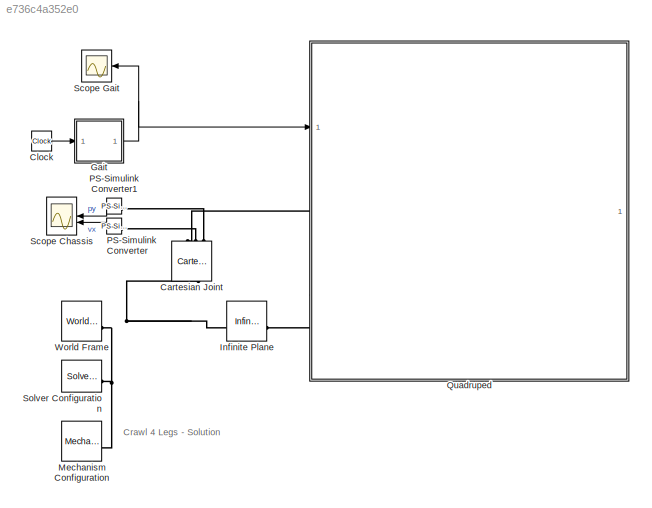
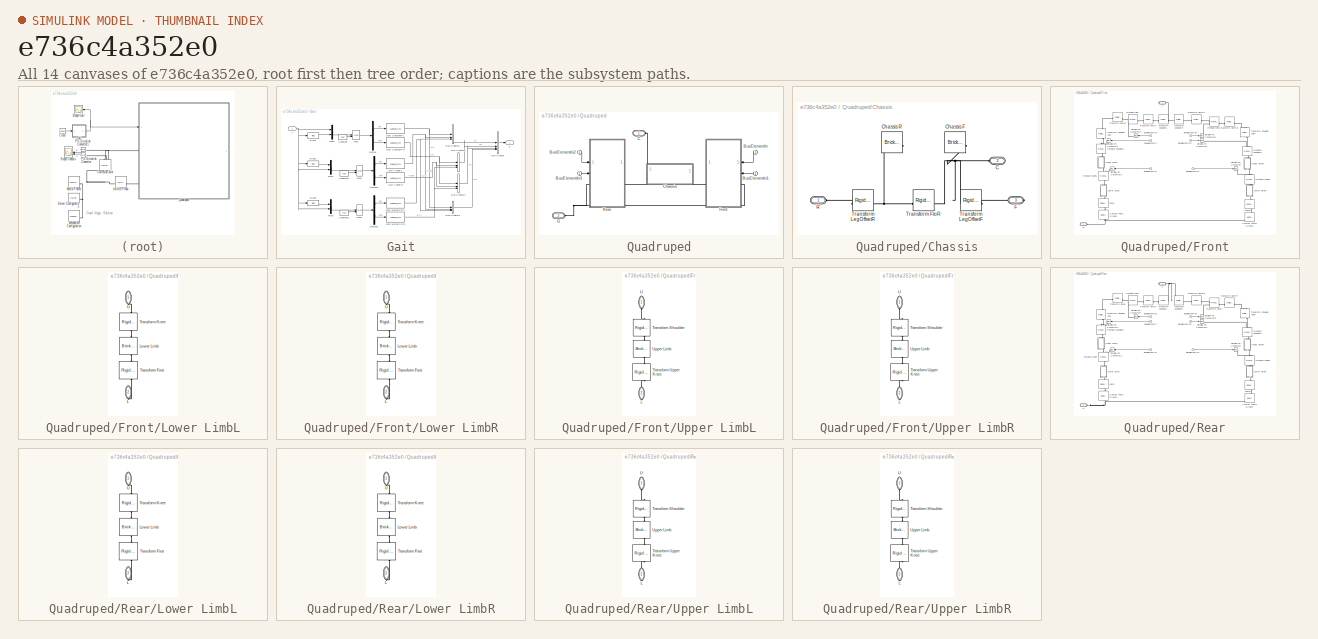
[diagram: thumbnail index - all 14 canvases of the model, root first then tree order]
MODEL slx_e736c4a352e0
KIND model
CONFIG AbsTol = 1e-3
CONFIG EnableMultiTasking = on
CONFIG FixedStep = auto
CONFIG MaxStep = 1e-2
CONFIG MinStep = auto
CONFIG RelTol = 1e-3
CONFIG SampleTimeConstraint = Unconstrained
CONFIG SolverName = ode23t
CONFIG StartTime = 0.0
CONFIG StopTime = 10.0
BLOCK [Reference] Cartesian Joint  REF=sm_lib/Joints/Cartesian
Joint
  NameLocation = right
  SourceBlock = sm_lib/Joints/Cartesian\nJoint
  SourceType = Cartesian\nJoint
BLOCK [Clock] Clock
BLOCK [SubSystem] Gait
BLOCK [Bias] Gait/Bias1
  Bias = tdur/2
  SaturateOnIntegerOverflow = off
BLOCK [Bias] Gait/Bias2
  Bias = tdur/2
  SaturateOnIntegerOverflow = off
BLOCK [Bias] Gait/Bias3
  Bias = tdur/2
  SaturateOnIntegerOverflow = off
BLOCK [BusCreator] Gait/Bus Creator
  DisplayOption = bar
  InheritFromInputs = on
  Inputs = 4
BLOCK [BusCreator] Gait/Bus Creator1
  DisplayOption = bar
  InheritFromInputs = on
  Inputs = 3
BLOCK [BusCreator] Gait/Bus Creator2
  DisplayOption = bar
  InheritFromInputs = on
  Inputs = 3
BLOCK [BusCreator] Gait/Bus Creator3
  DisplayOption = bar
  InheritFromInputs = on
  Inputs = 3
BLOCK [BusCreator] Gait/Bus Creator4
  DisplayOption = bar
  InheritFromInputs = on
  Inputs = 3
BLOCK [Constant] Gait/Constant
  Value = tdur
BLOCK [Constant] Gait/Constant1
  Value = tdur
BLOCK [Constant] Gait/Constant2
  Value = tdur
BLOCK [Demux] Gait/Demux
  Outputs = 2
BLOCK [Demux] Gait/Demux1
  Outputs = 2
BLOCK [Demux] Gait/Demux2
  Outputs = 2
BLOCK [Lookup_n-D] Gait/Gait ButterflyFL
  BreakpointsForDimension1 = [0 0.25 0.5 0.75 1]*tdur
  InputPortMap = u0
  InternalRulePriority = Speed
  InterpMethod = Akima spline
  NameLocation = top
  NumberOfTableDimensions = 1
  RndMeth = Simplest
  Table = [bMin (bMin+bMax)/2 bMax (bMin+bMax)/2 bMin]
BLOCK [Lookup_n-D] Gait/Gait ButterflyFR
  BreakpointsForDimension1 = [0 0.25 0.5 0.75 1]*tdur
  InputPortMap = u0
  InternalRulePriority = Speed
  InterpMethod = Akima spline
  NumberOfTableDimensions = 1
  RndMeth = Simplest
  Table = -[bMin (bMin+bMax)/2 bMax (bMin+bMax)/2 bMin]
BLOCK [Lookup_n-D] Gait/Gait KneeFL
  BreakpointsForDimension1 = [0     0.25 0.5   0.75 1      1]*tdur+[0 0 0 0 -tExtKnee 0]
  InputPortMap = u0
  InternalRulePriority = Speed
  InterpMethod = Akima spline
  NameLocation = top
  NumberOfTableDimensions = 1
  RndMeth = Simplest
  Table = [lMin lMin lMax lMax lMax lMin]
BLOCK [Lookup_n-D] Gait/Gait KneeFR
  BreakpointsForDimension1 = [0     0.25 0.5   0.75 1      1]*tdur+[0 0 0 0 -tExtKnee 0]
  InputPortMap = u0
  InternalRulePriority = Speed
  InterpMethod = Akima spline
  NumberOfTableDimensions = 1
  RndMeth = Simplest
  Table = [lMin lMin lMax lMax lMax lMin]
BLOCK [Lookup_n-D] Gait/Gait ShoulderFL
  BreakpointsForDimension1 = [0 0.25 0.5 0.75 1]*tdur
  InputPortMap = u0
  InternalRulePriority = Speed
  InterpMethod = Akima spline
  NameLocation = top
  NumberOfTableDimensions = 1
  RndMeth = Simplest
  Table = [uMin (uMin+uMax)/2 uMax (uMin+uMax)/2 uMin]
BLOCK [Lookup_n-D] Gait/Gait ShoulderFR
  BreakpointsForDimension1 = [0 0.25 0.5 0.75 1]*tdur
  InputPortMap = u0
  InternalRulePriority = Speed
  InterpMethod = Akima spline
  NumberOfTableDimensions = 1
  RndMeth = Simplest
  Table = [uMin (uMin+uMax)/2 uMax (uMin+uMax)/2 uMin]
BLOCK [Math] Gait/Mod
  Operator = mod
BLOCK [Math] Gait/Mod1
  Operator = mod
BLOCK [Math] Gait/Mod2
  Operator = mod
BLOCK [Mux] Gait/Mux1
  DisplayOption = bar
  Inputs = 2
BLOCK [Mux] Gait/Mux2
  DisplayOption = bar
  Inputs = 2
BLOCK [Mux] Gait/Mux3
  DisplayOption = bar
  Inputs = 2
BLOCK [Outport] Gait/q
BLOCK [Inport] Gait/t
BLOCK [Reference] Infinite Plane  REF=sm_lib/Curves and Surfaces/Infinite Plane
  SourceBlock = sm_lib/Curves and Surfaces/Infinite Plane
  SourceType = Infinite Plane
BLOCK [Reference] Mechanism Configuration  REF=sm_lib/Utilities/Mechanism
Configuration
  SourceBlock = sm_lib/Utilities/Mechanism\nConfiguration
  SourceType = Mechanism\nConfiguration
BLOCK [Reference] PS-Simulink Converter  REF=nesl_utility/PS-Simulink
Converter
  NameLocation = top
  SourceBlock = nesl_utility/PS-Simulink\nConverter
  SourceType = PS-Simulink\nConverter
BLOCK [Reference] PS-Simulink Converter1  REF=nesl_utility/PS-Simulink
Converter
  NameLocation = top
  SourceBlock = nesl_utility/PS-Simulink\nConverter
  SourceType = PS-Simulink\nConverter
BLOCK [SubSystem] Quadruped
BLOCK [Inport] Quadruped/BusElementIn
BLOCK [Inport] Quadruped/BusElementIn1
BLOCK [Inport] Quadruped/BusElementIn2
BLOCK [Inport] Quadruped/BusElementIn3
BLOCK [PMIOPort] Quadruped/C
  Side = Left
BLOCK [SubSystem] Quadruped/Chassis
  PortSchema = {"entries":[{"content":{"sides":[{"content":{"connectorIds":["LConn1"]},"type":"ConnectorPlacement.EquallySpacedRectSide","uuid":"7b3442d1-9cdb-4c81-bcba-527a755125cb"},{"content":{"connectorIds":["RConn1"],"side":"RIGHT"},"type":"ConnectorPlacement.EquallySpacedRectSide","uuid":"8b6aef7f-984d-41e4-bcd6-b81194131cbf"},{"content":{"connectorIds":["LConn2"],"side":"TOP"},"type":"ConnectorPlacement.E...<+253ch>
BLOCK [PMIOPort] Quadruped/Chassis/C
  Port = 2
  Side = Left
BLOCK [Reference] Quadruped/Chassis/Chassis F  REF=sm_lib/Body Elements/Brick Solid
  NameLocation = left
  SourceBlock = sm_lib/Body Elements/Brick Solid
  SourceType = Brick Solid
BLOCK [Reference] Quadruped/Chassis/Chassis R  REF=sm_lib/Body Elements/Brick Solid
  NameLocation = left
  SourceBlock = sm_lib/Body Elements/Brick Solid
  SourceType = Brick Solid
BLOCK [PMIOPort] Quadruped/Chassis/F
  Port = 3
  Side = Right
BLOCK [PMIOPort] Quadruped/Chassis/R
  Side = Left
BLOCK [Reference] Quadruped/Chassis/Transform FtoR  REF=sm_lib/Frames and
Transforms/Rigid
Transform
  SourceBlock = sm_lib/Frames and\nTransforms/Rigid\nTransform
  SourceType = Rigid\nTransform
BLOCK [Reference] Quadruped/Chassis/Transform LegOffsetF  REF=sm_lib/Frames and
Transforms/Rigid
Transform
  SourceBlock = sm_lib/Frames and\nTransforms/Rigid\nTransform
  SourceType = Rigid\nTransform
BLOCK [Reference] Quadruped/Chassis/Transform LegOffsetR  REF=sm_lib/Frames and
Transforms/Rigid
Transform
  SourceBlock = sm_lib/Frames and\nTransforms/Rigid\nTransform
  SourceType = Rigid\nTransform
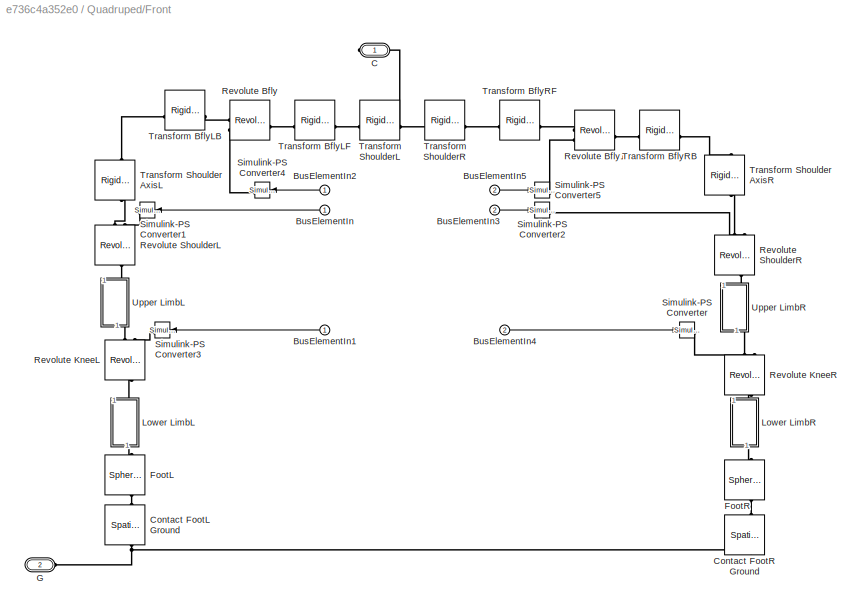
BLOCK [SubSystem] Quadruped/Front
BLOCK [Inport] Quadruped/Front/BusElementIn
BLOCK [Inport] Quadruped/Front/BusElementIn1
BLOCK [Inport] Quadruped/Front/BusElementIn2
BLOCK [Inport] Quadruped/Front/BusElementIn3
  Port = 2
BLOCK [Inport] Quadruped/Front/BusElementIn4
  Port = 2
BLOCK [Inport] Quadruped/Front/BusElementIn5
  Port = 2
BLOCK [PMIOPort] Quadruped/Front/C
  Side = Right
BLOCK [Reference] Quadruped/Front/Contact FootL Ground  REF=sm_lib/Forces and
Torques/Spatial
Contact Force
  NameLocation = left
  SourceBlock = sm_lib/Forces and\nTorques/Spatial\nContact Force
  SourceType = Spatial\nContact Force
BLOCK [Reference] Quadruped/Front/Contact FootR Ground  REF=sm_lib/Forces and
Torques/Spatial
Contact Force
  NameLocation = left
  SourceBlock = sm_lib/Forces and\nTorques/Spatial\nContact Force
  SourceType = Spatial\nContact Force
BLOCK [Reference] Quadruped/Front/FootL  REF=sm_lib/Body Elements/Spherical Solid
  NameLocation = left
  SourceBlock = sm_lib/Body Elements/Spherical Solid
  SourceType = Spherical Solid
BLOCK [Reference] Quadruped/Front/FootR  REF=sm_lib/Body Elements/Spherical Solid
  NameLocation = left
  SourceBlock = sm_lib/Body Elements/Spherical Solid
  SourceType = Spherical Solid
BLOCK [PMIOPort] Quadruped/Front/G
  Port = 2
  Side = Left
BLOCK [SubSystem] Quadruped/Front/Lower LimbL
  NameLocation = left
BLOCK [PMIOPort] Quadruped/Front/Lower LimbL/L
  NameLocation = left
  Port = 2
  Side = Right
BLOCK [Reference] Quadruped/Front/Lower LimbL/Lower Limb  REF=sm_lib/Body Elements/Brick Solid
  NameLocation = left
  SourceBlock = sm_lib/Body Elements/Brick Solid
  SourceType = Brick Solid
BLOCK [Reference] Quadruped/Front/Lower LimbL/Transform Foot  REF=sm_lib/Frames and
Transforms/Rigid
Transform
  NameLocation = left
  SourceBlock = sm_lib/Frames and\nTransforms/Rigid\nTransform
  SourceType = Rigid\nTransform
BLOCK [Reference] Quadruped/Front/Lower LimbL/Transform Knee  REF=sm_lib/Frames and
Transforms/Rigid
Transform
  NameLocation = left
  SourceBlock = sm_lib/Frames and\nTransforms/Rigid\nTransform
  SourceType = Rigid\nTransform
BLOCK [PMIOPort] Quadruped/Front/Lower LimbL/U
  NameLocation = right
  Side = Left
BLOCK [SubSystem] Quadruped/Front/Lower LimbR
  NameLocation = left
BLOCK [PMIOPort] Quadruped/Front/Lower LimbR/L
  NameLocation = left
  Port = 2
  Side = Right
BLOCK [Reference] Quadruped/Front/Lower LimbR/Lower Limb  REF=sm_lib/Body Elements/Brick Solid
  NameLocation = left
  SourceBlock = sm_lib/Body Elements/Brick Solid
  SourceType = Brick Solid
BLOCK [Reference] Quadruped/Front/Lower LimbR/Transform Foot  REF=sm_lib/Frames and
Transforms/Rigid
Transform
  NameLocation = left
  SourceBlock = sm_lib/Frames and\nTransforms/Rigid\nTransform
  SourceType = Rigid\nTransform
BLOCK [Reference] Quadruped/Front/Lower LimbR/Transform Knee  REF=sm_lib/Frames and
Transforms/Rigid
Transform
  NameLocation = left
  SourceBlock = sm_lib/Frames and\nTransforms/Rigid\nTransform
  SourceType = Rigid\nTransform
BLOCK [PMIOPort] Quadruped/Front/Lower LimbR/U
  NameLocation = right
  Side = Left
BLOCK [Reference] Quadruped/Front/Revolute Bfly  REF=sm_lib/Joints/Revolute Joint
  SourceBlock = sm_lib/Joints/Revolute Joint
  SourceType = Revolute Joint
BLOCK [Reference] Quadruped/Front/Revolute Bfly1  REF=sm_lib/Joints/Revolute Joint
  SourceBlock = sm_lib/Joints/Revolute Joint
  SourceType = Revolute Joint
BLOCK [Reference] Quadruped/Front/Revolute KneeL  REF=sm_lib/Joints/Revolute Joint
  NameLocation = left
  SourceBlock = sm_lib/Joints/Revolute Joint
  SourceType = Revolute Joint
BLOCK [Reference] Quadruped/Front/Revolute KneeR  REF=sm_lib/Joints/Revolute Joint
  NameLocation = left
  SourceBlock = sm_lib/Joints/Revolute Joint
  SourceType = Revolute Joint
BLOCK [Reference] Quadruped/Front/Revolute ShoulderL  REF=sm_lib/Joints/Revolute Joint
  NameLocation = left
  SourceBlock = sm_lib/Joints/Revolute Joint
  SourceType = Revolute Joint
BLOCK [Reference] Quadruped/Front/Revolute ShoulderR  REF=sm_lib/Joints/Revolute Joint
  NameLocation = left
  SourceBlock = sm_lib/Joints/Revolute Joint
  SourceType = Revolute Joint
BLOCK [Reference] Quadruped/Front/Simulink-PS Converter  REF=nesl_utility/Simulink-PS
Converter
  NameLocation = top
  SourceBlock = nesl_utility/Simulink-PS\nConverter
  SourceType = Simulink-PS\nConverter
BLOCK [Reference] Quadruped/Front/Simulink-PS Converter1  REF=nesl_utility/Simulink-PS
Converter
  SourceBlock = nesl_utility/Simulink-PS\nConverter
  SourceType = Simulink-PS\nConverter
BLOCK [Reference] Quadruped/Front/Simulink-PS Converter2  REF=nesl_utility/Simulink-PS
Converter
  SourceBlock = nesl_utility/Simulink-PS\nConverter
  SourceType = Simulink-PS\nConverter
BLOCK [Reference] Quadruped/Front/Simulink-PS Converter3  REF=nesl_utility/Simulink-PS
Converter
  SourceBlock = nesl_utility/Simulink-PS\nConverter
  SourceType = Simulink-PS\nConverter
BLOCK [Reference] Quadruped/Front/Simulink-PS Converter4  REF=nesl_utility/Simulink-PS
Converter
  SourceBlock = nesl_utility/Simulink-PS\nConverter
  SourceType = Simulink-PS\nConverter
BLOCK [Reference] Quadruped/Front/Simulink-PS Converter5  REF=nesl_utility/Simulink-PS
Converter
  SourceBlock = nesl_utility/Simulink-PS\nConverter
  SourceType = Simulink-PS\nConverter
BLOCK [Reference] Quadruped/Front/Transform BflyLB  REF=sm_lib/Frames and
Transforms/Rigid
Transform
  SourceBlock = sm_lib/Frames and\nTransforms/Rigid\nTransform
  SourceType = Rigid\nTransform
BLOCK [Reference] Quadruped/Front/Transform BflyLF  REF=sm_lib/Frames and
Transforms/Rigid
Transform
  SourceBlock = sm_lib/Frames and\nTransforms/Rigid\nTransform
  SourceType = Rigid\nTransform
BLOCK [Reference] Quadruped/Front/Transform BflyRB  REF=sm_lib/Frames and
Transforms/Rigid
Transform
  SourceBlock = sm_lib/Frames and\nTransforms/Rigid\nTransform
  SourceType = Rigid\nTransform
BLOCK [Reference] Quadruped/Front/Transform BflyRF  REF=sm_lib/Frames and
Transforms/Rigid
Transform
  SourceBlock = sm_lib/Frames and\nTransforms/Rigid\nTransform
  SourceType = Rigid\nTransform
BLOCK [Reference] Quadruped/Front/Transform Shoulder AxisL  REF=sm_lib/Frames and
Transforms/Rigid
Transform
  NameLocation = left
  SourceBlock = sm_lib/Frames and\nTransforms/Rigid\nTransform
  SourceType = Rigid\nTransform
BLOCK [Reference] Quadruped/Front/Transform Shoulder AxisR  REF=sm_lib/Frames and
Transforms/Rigid
Transform
  NameLocation = right
  SourceBlock = sm_lib/Frames and\nTransforms/Rigid\nTransform
  SourceType = Rigid\nTransform
BLOCK [Reference] Quadruped/Front/Transform ShoulderL  REF=sm_lib/Frames and
Transforms/Rigid
Transform
  SourceBlock = sm_lib/Frames and\nTransforms/Rigid\nTransform
  SourceType = Rigid\nTransform
BLOCK [Reference] Quadruped/Front/Transform ShoulderR  REF=sm_lib/Frames and
Transforms/Rigid
Transform
  SourceBlock = sm_lib/Frames and\nTransforms/Rigid\nTransform
  SourceType = Rigid\nTransform
BLOCK [SubSystem] Quadruped/Front/Upper LimbL
  NameLocation = left
BLOCK [PMIOPort] Quadruped/Front/Upper LimbL/L
  NameLocation = left
  Port = 2
  Side = Right
BLOCK [Reference] Quadruped/Front/Upper LimbL/Transform Shoulder  REF=sm_lib/Frames and
Transforms/Rigid
Transform
  NameLocation = left
  SourceBlock = sm_lib/Frames and\nTransforms/Rigid\nTransform
  SourceType = Rigid\nTransform
BLOCK [Reference] Quadruped/Front/Upper LimbL/Transform Upper Knee  REF=sm_lib/Frames and
Transforms/Rigid
Transform
  NameLocation = left
  SourceBlock = sm_lib/Frames and\nTransforms/Rigid\nTransform
  SourceType = Rigid\nTransform
BLOCK [PMIOPort] Quadruped/Front/Upper LimbL/U
  NameLocation = left
  Side = Left
BLOCK [Reference] Quadruped/Front/Upper LimbL/Upper Limb  REF=sm_lib/Body Elements/Brick Solid
  NameLocation = left
  SourceBlock = sm_lib/Body Elements/Brick Solid
  SourceType = Brick Solid
BLOCK [SubSystem] Quadruped/Front/Upper LimbR
  NameLocation = left
BLOCK [PMIOPort] Quadruped/Front/Upper LimbR/L
  NameLocation = left
  Port = 2
  Side = Right
BLOCK [Reference] Quadruped/Front/Upper LimbR/Transform Shoulder  REF=sm_lib/Frames and
Transforms/Rigid
Transform
  NameLocation = left
  SourceBlock = sm_lib/Frames and\nTransforms/Rigid\nTransform
  SourceType = Rigid\nTransform
BLOCK [Reference] Quadruped/Front/Upper LimbR/Transform Upper Knee  REF=sm_lib/Frames and
Transforms/Rigid
Transform
  NameLocation = left
  SourceBlock = sm_lib/Frames and\nTransforms/Rigid\nTransform
  SourceType = Rigid\nTransform
BLOCK [PMIOPort] Quadruped/Front/Upper LimbR/U
  NameLocation = left
  Side = Left
BLOCK [Reference] Quadruped/Front/Upper LimbR/Upper Limb  REF=sm_lib/Body Elements/Brick Solid
  NameLocation = left
  SourceBlock = sm_lib/Body Elements/Brick Solid
  SourceType = Brick Solid
BLOCK [PMIOPort] Quadruped/G
  Port = 2
  Side = Left
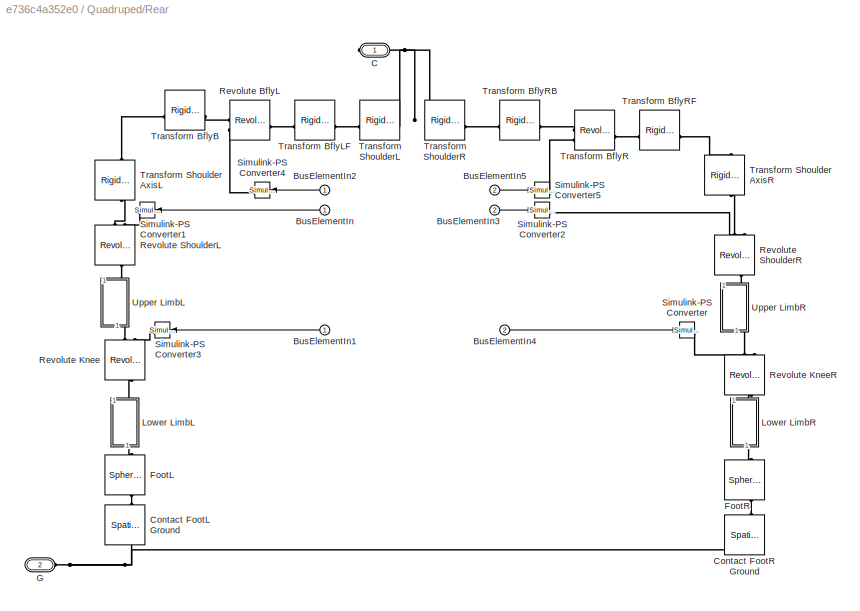
BLOCK [SubSystem] Quadruped/Rear
BLOCK [Inport] Quadruped/Rear/BusElementIn
BLOCK [Inport] Quadruped/Rear/BusElementIn1
BLOCK [Inport] Quadruped/Rear/BusElementIn2
BLOCK [Inport] Quadruped/Rear/BusElementIn3
  Port = 2
BLOCK [Inport] Quadruped/Rear/BusElementIn4
  Port = 2
BLOCK [Inport] Quadruped/Rear/BusElementIn5
  Port = 2
BLOCK [PMIOPort] Quadruped/Rear/C
  Side = Right
BLOCK [Reference] Quadruped/Rear/Contact FootL Ground  REF=sm_lib/Forces and
Torques/Spatial
Contact Force
  NameLocation = left
  SourceBlock = sm_lib/Forces and\nTorques/Spatial\nContact Force
  SourceType = Spatial\nContact Force
BLOCK [Reference] Quadruped/Rear/Contact FootR Ground  REF=sm_lib/Forces and
Torques/Spatial
Contact Force
  NameLocation = left
  SourceBlock = sm_lib/Forces and\nTorques/Spatial\nContact Force
  SourceType = Spatial\nContact Force
BLOCK [Reference] Quadruped/Rear/FootL  REF=sm_lib/Body Elements/Spherical Solid
  NameLocation = left
  SourceBlock = sm_lib/Body Elements/Spherical Solid
  SourceType = Spherical Solid
BLOCK [Reference] Quadruped/Rear/FootR  REF=sm_lib/Body Elements/Spherical Solid
  NameLocation = left
  SourceBlock = sm_lib/Body Elements/Spherical Solid
  SourceType = Spherical Solid
BLOCK [PMIOPort] Quadruped/Rear/G
  Port = 2
  Side = Left
BLOCK [SubSystem] Quadruped/Rear/Lower LimbL
  NameLocation = left
BLOCK [PMIOPort] Quadruped/Rear/Lower LimbL/L
  NameLocation = left
  Port = 2
  Side = Right
BLOCK [Reference] Quadruped/Rear/Lower LimbL/Lower Limb  REF=sm_lib/Body Elements/Brick Solid
  NameLocation = left
  SourceBlock = sm_lib/Body Elements/Brick Solid
  SourceType = Brick Solid
BLOCK [Reference] Quadruped/Rear/Lower LimbL/Transform Foot  REF=sm_lib/Frames and
Transforms/Rigid
Transform
  NameLocation = left
  SourceBlock = sm_lib/Frames and\nTransforms/Rigid\nTransform
  SourceType = Rigid\nTransform
BLOCK [Reference] Quadruped/Rear/Lower LimbL/Transform Knee  REF=sm_lib/Frames and
Transforms/Rigid
Transform
  NameLocation = left
  SourceBlock = sm_lib/Frames and\nTransforms/Rigid\nTransform
  SourceType = Rigid\nTransform
BLOCK [PMIOPort] Quadruped/Rear/Lower LimbL/U
  NameLocation = right
  Side = Left
BLOCK [SubSystem] Quadruped/Rear/Lower LimbR
  NameLocation = left
BLOCK [PMIOPort] Quadruped/Rear/Lower LimbR/L
  NameLocation = left
  Port = 2
  Side = Right
BLOCK [Reference] Quadruped/Rear/Lower LimbR/Lower Limb  REF=sm_lib/Body Elements/Brick Solid
  NameLocation = left
  SourceBlock = sm_lib/Body Elements/Brick Solid
  SourceType = Brick Solid
BLOCK [Reference] Quadruped/Rear/Lower LimbR/Transform Foot  REF=sm_lib/Frames and
Transforms/Rigid
Transform
  NameLocation = left
  SourceBlock = sm_lib/Frames and\nTransforms/Rigid\nTransform
  SourceType = Rigid\nTransform
BLOCK [Reference] Quadruped/Rear/Lower LimbR/Transform Knee  REF=sm_lib/Frames and
Transforms/Rigid
Transform
  NameLocation = left
  SourceBlock = sm_lib/Frames and\nTransforms/Rigid\nTransform
  SourceType = Rigid\nTransform
BLOCK [PMIOPort] Quadruped/Rear/Lower LimbR/U
  NameLocation = right
  Side = Left
BLOCK [Reference] Quadruped/Rear/Revolute BflyL  REF=sm_lib/Joints/Revolute Joint
  SourceBlock = sm_lib/Joints/Revolute Joint
  SourceType = Revolute Joint
BLOCK [Reference] Quadruped/Rear/Revolute Knee  REF=sm_lib/Joints/Revolute Joint
  NameLocation = left
  SourceBlock = sm_lib/Joints/Revolute Joint
  SourceType = Revolute Joint
BLOCK [Reference] Quadruped/Rear/Revolute KneeR  REF=sm_lib/Joints/Revolute Joint
  NameLocation = left
  SourceBlock = sm_lib/Joints/Revolute Joint
  SourceType = Revolute Joint
BLOCK [Reference] Quadruped/Rear/Revolute ShoulderL  REF=sm_lib/Joints/Revolute Joint
  NameLocation = left
  SourceBlock = sm_lib/Joints/Revolute Joint
  SourceType = Revolute Joint
BLOCK [Reference] Quadruped/Rear/Revolute ShoulderR  REF=sm_lib/Joints/Revolute Joint
  NameLocation = left
  SourceBlock = sm_lib/Joints/Revolute Joint
  SourceType = Revolute Joint
BLOCK [Reference] Quadruped/Rear/Simulink-PS Converter  REF=nesl_utility/Simulink-PS
Converter
  NameLocation = top
  SourceBlock = nesl_utility/Simulink-PS\nConverter
  SourceType = Simulink-PS\nConverter
BLOCK [Reference] Quadruped/Rear/Simulink-PS Converter1  REF=nesl_utility/Simulink-PS
Converter
  SourceBlock = nesl_utility/Simulink-PS\nConverter
  SourceType = Simulink-PS\nConverter
BLOCK [Reference] Quadruped/Rear/Simulink-PS Converter2  REF=nesl_utility/Simulink-PS
Converter
  SourceBlock = nesl_utility/Simulink-PS\nConverter
  SourceType = Simulink-PS\nConverter
BLOCK [Reference] Quadruped/Rear/Simulink-PS Converter3  REF=nesl_utility/Simulink-PS
Converter
  SourceBlock = nesl_utility/Simulink-PS\nConverter
  SourceType = Simulink-PS\nConverter
BLOCK [Reference] Quadruped/Rear/Simulink-PS Converter4  REF=nesl_utility/Simulink-PS
Converter
  SourceBlock = nesl_utility/Simulink-PS\nConverter
  SourceType = Simulink-PS\nConverter
BLOCK [Reference] Quadruped/Rear/Simulink-PS Converter5  REF=nesl_utility/Simulink-PS
Converter
  SourceBlock = nesl_utility/Simulink-PS\nConverter
  SourceType = Simulink-PS\nConverter
BLOCK [Reference] Quadruped/Rear/Transform BflyB  REF=sm_lib/Frames and
Transforms/Rigid
Transform
  SourceBlock = sm_lib/Frames and\nTransforms/Rigid\nTransform
  SourceType = Rigid\nTransform
BLOCK [Reference] Quadruped/Rear/Transform BflyLF  REF=sm_lib/Frames and
Transforms/Rigid
Transform
  SourceBlock = sm_lib/Frames and\nTransforms/Rigid\nTransform
  SourceType = Rigid\nTransform
BLOCK [Reference] Quadruped/Rear/Transform BflyR  REF=sm_lib/Joints/Revolute Joint
  SourceBlock = sm_lib/Joints/Revolute Joint
  SourceType = Revolute Joint
BLOCK [Reference] Quadruped/Rear/Transform BflyRB  REF=sm_lib/Frames and
Transforms/Rigid
Transform
  SourceBlock = sm_lib/Frames and\nTransforms/Rigid\nTransform
  SourceType = Rigid\nTransform
BLOCK [Reference] Quadruped/Rear/Transform BflyRF  REF=sm_lib/Frames and
Transforms/Rigid
Transform
  SourceBlock = sm_lib/Frames and\nTransforms/Rigid\nTransform
  SourceType = Rigid\nTransform
BLOCK [Reference] Quadruped/Rear/Transform Shoulder AxisL  REF=sm_lib/Frames and
Transforms/Rigid
Transform
  NameLocation = left
  SourceBlock = sm_lib/Frames and\nTransforms/Rigid\nTransform
  SourceType = Rigid\nTransform
BLOCK [Reference] Quadruped/Rear/Transform Shoulder AxisR  REF=sm_lib/Frames and
Transforms/Rigid
Transform
  NameLocation = right
  SourceBlock = sm_lib/Frames and\nTransforms/Rigid\nTransform
  SourceType = Rigid\nTransform
BLOCK [Reference] Quadruped/Rear/Transform ShoulderL  REF=sm_lib/Frames and
Transforms/Rigid
Transform
  SourceBlock = sm_lib/Frames and\nTransforms/Rigid\nTransform
  SourceType = Rigid\nTransform
BLOCK [Reference] Quadruped/Rear/Transform ShoulderR  REF=sm_lib/Frames and
Transforms/Rigid
Transform
  SourceBlock = sm_lib/Frames and\nTransforms/Rigid\nTransform
  SourceType = Rigid\nTransform
BLOCK [SubSystem] Quadruped/Rear/Upper LimbL
  NameLocation = left
BLOCK [PMIOPort] Quadruped/Rear/Upper LimbL/L
  NameLocation = left
  Port = 2
  Side = Right
BLOCK [Reference] Quadruped/Rear/Upper LimbL/Transform Shoulder  REF=sm_lib/Frames and
Transforms/Rigid
Transform
  NameLocation = left
  SourceBlock = sm_lib/Frames and\nTransforms/Rigid\nTransform
  SourceType = Rigid\nTransform
BLOCK [Reference] Quadruped/Rear/Upper LimbL/Transform Upper Knee  REF=sm_lib/Frames and
Transforms/Rigid
Transform
  NameLocation = left
  SourceBlock = sm_lib/Frames and\nTransforms/Rigid\nTransform
  SourceType = Rigid\nTransform
BLOCK [PMIOPort] Quadruped/Rear/Upper LimbL/U
  NameLocation = left
  Side = Left
BLOCK [Reference] Quadruped/Rear/Upper LimbL/Upper Limb  REF=sm_lib/Body Elements/Brick Solid
  NameLocation = left
  SourceBlock = sm_lib/Body Elements/Brick Solid
  SourceType = Brick Solid
BLOCK [SubSystem] Quadruped/Rear/Upper LimbR
  NameLocation = left
BLOCK [PMIOPort] Quadruped/Rear/Upper LimbR/L
  NameLocation = left
  Port = 2
  Side = Right
BLOCK [Reference] Quadruped/Rear/Upper LimbR/Transform Shoulder  REF=sm_lib/Frames and
Transforms/Rigid
Transform
  NameLocation = left
  SourceBlock = sm_lib/Frames and\nTransforms/Rigid\nTransform
  SourceType = Rigid\nTransform
BLOCK [Reference] Quadruped/Rear/Upper LimbR/Transform Upper Knee  REF=sm_lib/Frames and
Transforms/Rigid
Transform
  NameLocation = left
  SourceBlock = sm_lib/Frames and\nTransforms/Rigid\nTransform
  SourceType = Rigid\nTransform
BLOCK [PMIOPort] Quadruped/Rear/Upper LimbR/U
  NameLocation = left
  Side = Left
BLOCK [Reference] Quadruped/Rear/Upper LimbR/Upper Limb  REF=sm_lib/Body Elements/Brick Solid
  NameLocation = left
  SourceBlock = sm_lib/Body Elements/Brick Solid
  SourceType = Brick Solid
BLOCK [Scope] Scope Chassis
  Floating = off
  NumInputPorts = 2
  ScopeSpecificationString = Simulink.scopes.TimeScopeBlockCfg('CurrentConfiguration', extmgr.ConfigurationSet(extmgr.Configuration('Core','General UI',true),extmgr.Configuration('Core','Source UI',true),extmgr.Configuration('Sources','WiredSimulink',true,'DataLoggingVariableName','ScopeData2'),extmgr.Configuration('Visuals','Time Domain',true,'SerializedDisplays',{struct('MinYLimReal','-0.27815','MaxYLimReal','0.03627','YLab...<+2222ch>
BLOCK [Scope] Scope Gait
  Floating = off
  NumInputPorts = 1
  ScopeSpecificationString = Simulink.scopes.TimeScopeBlockCfg('CurrentConfiguration', extmgr.ConfigurationSet(extmgr.Configuration('Core','General UI',true),extmgr.Configuration('Core','Source UI',true),extmgr.Configuration('Sources','WiredSimulink',true,'DataLoggingVariableName','ScopeData1'),extmgr.Configuration('Visuals','Time Domain',true,'SerializedDisplays',{struct('MinYLimReal','-84.92464','MaxYLimReal','114.32173','Y...<+1551ch>
BLOCK [Reference] Solver Configuration  REF=nesl_utility/Solver
Configuration
  SourceBlock = nesl_utility/Solver\nConfiguration
  SourceType = Solver\nConfiguration
BLOCK [Reference] World Frame  REF=sm_lib/Frames and
Transforms/World Frame
  SourceBlock = sm_lib/Frames and\nTransforms/World Frame
  SourceType = World Frame
ANNOTATION (root): Crawl 4 Legs - Solution
LINE Clock:1 -> Gait:1
LINE Gait/Bias1:1 -> Gait/Mux1:2
LINE Gait/Bias2:1 -> Gait/Mux2:1
LINE Gait/Bias3:1 -> Gait/Mux3:1
LINE Gait/Bus Creator1:1 -> Gait/Bus Creator:1
LINE Gait/Bus Creator2:1 -> Gait/Bus Creator:2
LINE Gait/Bus Creator3:1 -> Gait/Bus Creator:4
LINE Gait/Bus Creator4:1 -> Gait/Bus Creator:3
LINE Gait/Bus Creator:1 -> Gait/q:1
LINE Gait/Constant1:1 -> Gait/Mod1:2
LINE Gait/Constant2:1 -> Gait/Mod2:2
LINE Gait/Constant:1 -> Gait/Mod:2
LINE Gait/Demux1:1 -> Gait/Gait ButterflyFL:1
LINE Gait/Demux1:2 -> Gait/Gait ButterflyFR:1
LINE Gait/Demux2:1 -> Gait/Gait KneeFL:1
LINE Gait/Demux2:2 -> Gait/Gait KneeFR:1
LINE Gait/Demux:1 -> Gait/Gait ShoulderFL:1
LINE Gait/Demux:2 -> Gait/Gait ShoulderFR:1
NET Gait/Gait ButterflyFL:1 -> Gait/Bus Creator1:3, Gait/Bus Creator3:3
NET Gait/Gait ButterflyFR:1 -> Gait/Bus Creator2:3, Gait/Bus Creator4:3
NET Gait/Gait KneeFL:1 -> Gait/Bus Creator1:2, Gait/Bus Creator3:2
NET Gait/Gait KneeFR:1 -> Gait/Bus Creator2:2, Gait/Bus Creator4:2
NET Gait/Gait ShoulderFL:1 -> Gait/Bus Creator1:1, Gait/Bus Creator3:1
NET Gait/Gait ShoulderFR:1 -> Gait/Bus Creator2:1, Gait/Bus Creator4:1
LINE Gait/Mod1:1 -> Gait/Demux2:1
LINE Gait/Mod2:1 -> Gait/Demux1:1
LINE Gait/Mod:1 -> Gait/Demux:1
LINE Gait/Mux1:1 -> Gait/Mod:1
LINE Gait/Mux2:1 -> Gait/Mod1:1
LINE Gait/Mux3:1 -> Gait/Mod2:1
NET Gait/t:1 -> Gait/Bias1:1, Gait/Bias2:1, Gait/Bias3:1, Gait/Mux1:1, Gait/Mux2:2, Gait/Mux3:2
NET Gait:1 -> Quadruped:1, Scope Gait:1
LINE PS-Simulink Converter1:1 -> Scope Chassis:1
LINE PS-Simulink Converter:1 -> Scope Chassis:2
LINE Quadruped/BusElementIn1:1 -> Quadruped/Front:2
LINE Quadruped/BusElementIn2:1 -> Quadruped/Rear:1
LINE Quadruped/BusElementIn3:1 -> Quadruped/Rear:2
LINE Quadruped/BusElementIn:1 -> Quadruped/Front:1
LINE Quadruped/Front/BusElementIn1:1 -> Quadruped/Front/Simulink-PS Converter3:1
LINE Quadruped/Front/BusElementIn2:1 -> Quadruped/Front/Simulink-PS Converter4:1
LINE Quadruped/Front/BusElementIn3:1 -> Quadruped/Front/Simulink-PS Converter2:1
LINE Quadruped/Front/BusElementIn4:1 -> Quadruped/Front/Simulink-PS Converter:1
LINE Quadruped/Front/BusElementIn5:1 -> Quadruped/Front/Simulink-PS Converter5:1
LINE Quadruped/Front/BusElementIn:1 -> Quadruped/Front/Simulink-PS Converter1:1
LINE Quadruped/Rear/BusElementIn1:1 -> Quadruped/Rear/Simulink-PS Converter3:1
LINE Quadruped/Rear/BusElementIn2:1 -> Quadruped/Rear/Simulink-PS Converter4:1
LINE Quadruped/Rear/BusElementIn3:1 -> Quadruped/Rear/Simulink-PS Converter2:1
LINE Quadruped/Rear/BusElementIn4:1 -> Quadruped/Rear/Simulink-PS Converter:1
LINE Quadruped/Rear/BusElementIn5:1 -> Quadruped/Rear/Simulink-PS Converter5:1
LINE Quadruped/Rear/BusElementIn:1 -> Quadruped/Rear/Simulink-PS Converter1:1
PNET net1: Cartesian Joint:LConn1 -- Infinite Plane:LConn1 -- Mechanism Configuration:RConn1 -- Solver Configuration:RConn1 -- World Frame:RConn1
PLINE Cartesian Joint:RConn1 -- Quadruped:LConn1
PLINE Cartesian Joint:RConn2 -- PS-Simulink Converter:LConn1
PLINE Cartesian Joint:RConn3 -- PS-Simulink Converter1:LConn1
PLINE Infinite Plane:RConn1 -- Quadruped:LConn2
PLINE Quadruped/C:RConn1 -- Quadruped/Chassis:LConn2
PNET net2: Quadruped/Chassis/C:RConn1 -- Quadruped/Chassis/Chassis F:RConn1 -- Quadruped/Chassis/Transform FtoR:LConn1 -- Quadruped/Chassis/Transform LegOffsetF:LConn1
PNET net3: Quadruped/Chassis/Chassis R:RConn1 -- Quadruped/Chassis/Transform FtoR:RConn1 -- Quadruped/Chassis/Transform LegOffsetR:RConn1
PLINE Quadruped/Chassis/F:RConn1 -- Quadruped/Chassis/Transform LegOffsetF:RConn1
PLINE Quadruped/Chassis/R:RConn1 -- Quadruped/Chassis/Transform LegOffsetR:LConn1
PLINE Quadruped/Chassis:LConn1 -- Quadruped/Rear:RConn1
PLINE Quadruped/Chassis:RConn1 -- Quadruped/Front:RConn1
PNET net4: Quadruped/Front/C:RConn1 -- Quadruped/Front/Transform ShoulderL:RConn1 -- Quadruped/Front/Transform ShoulderR:LConn1
PLINE Quadruped/Front/Contact FootL Ground:LConn1 -- Quadruped/Front/FootL:LConn1
PNET net5: Quadruped/Front/Contact FootL Ground:RConn1 -- Quadruped/Front/Contact FootR Ground:RConn1 -- Quadruped/Front/G:RConn1
PLINE Quadruped/Front/Contact FootR Ground:LConn1 -- Quadruped/Front/FootR:LConn1
PLINE Quadruped/Front/FootL:RConn1 -- Quadruped/Front/Lower LimbL:RConn1
PLINE Quadruped/Front/FootR:RConn1 -- Quadruped/Front/Lower LimbR:RConn1
PLINE Quadruped/Front/Lower LimbL/L:RConn1 -- Quadruped/Front/Lower LimbL/Transform Foot:RConn1
PLINE Quadruped/Front/Lower LimbL/Lower Limb:LConn1 -- Quadruped/Front/Lower LimbL/Transform Knee:LConn1
PLINE Quadruped/Front/Lower LimbL/Lower Limb:RConn1 -- Quadruped/Front/Lower LimbL/Transform Foot:LConn1
PLINE Quadruped/Front/Lower LimbL/Transform Knee:RConn1 -- Quadruped/Front/Lower LimbL/U:RConn1
PLINE Quadruped/Front/Lower LimbL:LConn1 -- Quadruped/Front/Revolute KneeL:RConn1
PLINE Quadruped/Front/Lower LimbR/L:RConn1 -- Quadruped/Front/Lower LimbR/Transform Foot:RConn1
PLINE Quadruped/Front/Lower LimbR/Lower Limb:LConn1 -- Quadruped/Front/Lower LimbR/Transform Knee:LConn1
PLINE Quadruped/Front/Lower LimbR/Lower Limb:RConn1 -- Quadruped/Front/Lower LimbR/Transform Foot:LConn1
PLINE Quadruped/Front/Lower LimbR/Transform Knee:RConn1 -- Quadruped/Front/Lower LimbR/U:RConn1
PLINE Quadruped/Front/Lower LimbR:LConn1 -- Quadruped/Front/Revolute KneeR:RConn1
PLINE Quadruped/Front/Revolute Bfly1:LConn1 -- Quadruped/Front/Transform BflyRF:RConn1
PLINE Quadruped/Front/Revolute Bfly1:LConn2 -- Quadruped/Front/Simulink-PS Converter5:RConn1
PLINE Quadruped/Front/Revolute Bfly1:RConn1 -- Quadruped/Front/Transform BflyRB:RConn1
PLINE Quadruped/Front/Revolute Bfly:LConn1 -- Quadruped/Front/Transform BflyLB:RConn1
PLINE Quadruped/Front/Revolute Bfly:LConn2 -- Quadruped/Front/Simulink-PS Converter4:RConn1
PLINE Quadruped/Front/Revolute Bfly:RConn1 -- Quadruped/Front/Transform BflyLF:RConn1
PLINE Quadruped/Front/Revolute KneeL:LConn1 -- Quadruped/Front/Upper LimbL:RConn1
PLINE Quadruped/Front/Revolute KneeL:LConn2 -- Quadruped/Front/Simulink-PS Converter3:RConn1
PLINE Quadruped/Front/Revolute KneeR:LConn1 -- Quadruped/Front/Upper LimbR:RConn1
PLINE Quadruped/Front/Revolute KneeR:LConn2 -- Quadruped/Front/Simulink-PS Converter:RConn1
PLINE Quadruped/Front/Revolute ShoulderL:LConn1 -- Quadruped/Front/Transform Shoulder AxisL:RConn1
PLINE Quadruped/Front/Revolute ShoulderL:LConn2 -- Quadruped/Front/Simulink-PS Converter1:RConn1
PLINE Quadruped/Front/Revolute ShoulderL:RConn1 -- Quadruped/Front/Upper LimbL:LConn1
PLINE Quadruped/Front/Revolute ShoulderR:LConn1 -- Quadruped/Front/Transform Shoulder AxisR:RConn1
PLINE Quadruped/Front/Revolute ShoulderR:LConn2 -- Quadruped/Front/Simulink-PS Converter2:RConn1
PLINE Quadruped/Front/Revolute ShoulderR:RConn1 -- Quadruped/Front/Upper LimbR:LConn1
PLINE Quadruped/Front/Transform BflyLB:LConn1 -- Quadruped/Front/Transform Shoulder AxisL:LConn1
PLINE Quadruped/Front/Transform BflyLF:LConn1 -- Quadruped/Front/Transform ShoulderL:LConn1
PLINE Quadruped/Front/Transform BflyRB:LConn1 -- Quadruped/Front/Transform Shoulder AxisR:LConn1
PLINE Quadruped/Front/Transform BflyRF:LConn1 -- Quadruped/Front/Transform ShoulderR:RConn1
PLINE Quadruped/Front/Upper LimbL/L:RConn1 -- Quadruped/Front/Upper LimbL/Transform Upper Knee:RConn1
PLINE Quadruped/Front/Upper LimbL/Transform Shoulder:LConn1 -- Quadruped/Front/Upper LimbL/Upper Limb:LConn1
PLINE Quadruped/Front/Upper LimbL/Transform Shoulder:RConn1 -- Quadruped/Front/Upper LimbL/U:RConn1
PLINE Quadruped/Front/Upper LimbL/Transform Upper Knee:LConn1 -- Quadruped/Front/Upper LimbL/Upper Limb:RConn1
PLINE Quadruped/Front/Upper LimbR/L:RConn1 -- Quadruped/Front/Upper LimbR/Transform Upper Knee:RConn1
PLINE Quadruped/Front/Upper LimbR/Transform Shoulder:LConn1 -- Quadruped/Front/Upper LimbR/Upper Limb:LConn1
PLINE Quadruped/Front/Upper LimbR/Transform Shoulder:RConn1 -- Quadruped/Front/Upper LimbR/U:RConn1
PLINE Quadruped/Front/Upper LimbR/Transform Upper Knee:LConn1 -- Quadruped/Front/Upper LimbR/Upper Limb:RConn1
PNET net6: Quadruped/Front:LConn1 -- Quadruped/G:RConn1 -- Quadruped/Rear:LConn1
PNET net7: Quadruped/Rear/C:RConn1 -- Quadruped/Rear/Transform ShoulderL:RConn1 -- Quadruped/Rear/Transform ShoulderR:LConn1
PLINE Quadruped/Rear/Contact FootL Ground:LConn1 -- Quadruped/Rear/FootL:LConn1
PNET net8: Quadruped/Rear/Contact FootL Ground:RConn1 -- Quadruped/Rear/Contact FootR Ground:RConn1 -- Quadruped/Rear/G:RConn1
PLINE Quadruped/Rear/Contact FootR Ground:LConn1 -- Quadruped/Rear/FootR:LConn1
PLINE Quadruped/Rear/FootL:RConn1 -- Quadruped/Rear/Lower LimbL:RConn1
PLINE Quadruped/Rear/FootR:RConn1 -- Quadruped/Rear/Lower LimbR:RConn1
PLINE Quadruped/Rear/Lower LimbL/L:RConn1 -- Quadruped/Rear/Lower LimbL/Transform Foot:RConn1
PLINE Quadruped/Rear/Lower LimbL/Lower Limb:LConn1 -- Quadruped/Rear/Lower LimbL/Transform Knee:LConn1
PLINE Quadruped/Rear/Lower LimbL/Lower Limb:RConn1 -- Quadruped/Rear/Lower LimbL/Transform Foot:LConn1
PLINE Quadruped/Rear/Lower LimbL/Transform Knee:RConn1 -- Quadruped/Rear/Lower LimbL/U:RConn1
PLINE Quadruped/Rear/Lower LimbL:LConn1 -- Quadruped/Rear/Revolute Knee:RConn1
PLINE Quadruped/Rear/Lower LimbR/L:RConn1 -- Quadruped/Rear/Lower LimbR/Transform Foot:RConn1
PLINE Quadruped/Rear/Lower LimbR/Lower Limb:LConn1 -- Quadruped/Rear/Lower LimbR/Transform Knee:LConn1
PLINE Quadruped/Rear/Lower LimbR/Lower Limb:RConn1 -- Quadruped/Rear/Lower LimbR/Transform Foot:LConn1
PLINE Quadruped/Rear/Lower LimbR/Transform Knee:RConn1 -- Quadruped/Rear/Lower LimbR/U:RConn1
PLINE Quadruped/Rear/Lower LimbR:LConn1 -- Quadruped/Rear/Revolute KneeR:RConn1
PLINE Quadruped/Rear/Revolute BflyL:LConn1 -- Quadruped/Rear/Transform BflyB:RConn1
PLINE Quadruped/Rear/Revolute BflyL:LConn2 -- Quadruped/Rear/Simulink-PS Converter4:RConn1
PLINE Quadruped/Rear/Revolute BflyL:RConn1 -- Quadruped/Rear/Transform BflyLF:RConn1
PLINE Quadruped/Rear/Revolute Knee:LConn1 -- Quadruped/Rear/Upper LimbL:RConn1
PLINE Quadruped/Rear/Revolute Knee:LConn2 -- Quadruped/Rear/Simulink-PS Converter3:RConn1
PLINE Quadruped/Rear/Revolute KneeR:LConn1 -- Quadruped/Rear/Upper LimbR:RConn1
PLINE Quadruped/Rear/Revolute KneeR:LConn2 -- Quadruped/Rear/Simulink-PS Converter:RConn1
PLINE Quadruped/Rear/Revolute ShoulderL:LConn1 -- Quadruped/Rear/Transform Shoulder AxisL:RConn1
PLINE Quadruped/Rear/Revolute ShoulderL:LConn2 -- Quadruped/Rear/Simulink-PS Converter1:RConn1
PLINE Quadruped/Rear/Revolute ShoulderL:RConn1 -- Quadruped/Rear/Upper LimbL:LConn1
PLINE Quadruped/Rear/Revolute ShoulderR:LConn1 -- Quadruped/Rear/Transform Shoulder AxisR:RConn1
PLINE Quadruped/Rear/Revolute ShoulderR:LConn2 -- Quadruped/Rear/Simulink-PS Converter2:RConn1
PLINE Quadruped/Rear/Revolute ShoulderR:RConn1 -- Quadruped/Rear/Upper LimbR:LConn1
PLINE Quadruped/Rear/Simulink-PS Converter5:RConn1 -- Quadruped/Rear/Transform BflyR:LConn2
PLINE Quadruped/Rear/Transform BflyB:LConn1 -- Quadruped/Rear/Transform Shoulder AxisL:LConn1
PLINE Quadruped/Rear/Transform BflyLF:LConn1 -- Quadruped/Rear/Transform ShoulderL:LConn1
PLINE Quadruped/Rear/Transform BflyR:LConn1 -- Quadruped/Rear/Transform BflyRB:RConn1
PLINE Quadruped/Rear/Transform BflyR:RConn1 -- Quadruped/Rear/Transform BflyRF:RConn1
PLINE Quadruped/Rear/Transform BflyRB:LConn1 -- Quadruped/Rear/Transform ShoulderR:RConn1
PLINE Quadruped/Rear/Transform BflyRF:LConn1 -- Quadruped/Rear/Transform Shoulder AxisR:LConn1
PLINE Quadruped/Rear/Upper LimbL/L:RConn1 -- Quadruped/Rear/Upper LimbL/Transform Upper Knee:RConn1
PLINE Quadruped/Rear/Upper LimbL/Transform Shoulder:LConn1 -- Quadruped/Rear/Upper LimbL/Upper Limb:LConn1
PLINE Quadruped/Rear/Upper LimbL/Transform Shoulder:RConn1 -- Quadruped/Rear/Upper LimbL/U:RConn1
PLINE Quadruped/Rear/Upper LimbL/Transform Upper Knee:LConn1 -- Quadruped/Rear/Upper LimbL/Upper Limb:RConn1
PLINE Quadruped/Rear/Upper LimbR/L:RConn1 -- Quadruped/Rear/Upper LimbR/Transform Upper Knee:RConn1
PLINE Quadruped/Rear/Upper LimbR/Transform Shoulder:LConn1 -- Quadruped/Rear/Upper LimbR/Upper Limb:LConn1
PLINE Quadruped/Rear/Upper LimbR/Transform Shoulder:RConn1 -- Quadruped/Rear/Upper LimbR/U:RConn1
PLINE Quadruped/Rear/Upper LimbR/Transform Upper Knee:LConn1 -- Quadruped/Rear/Upper LimbR/Upper Limb:RConn1
note: NET lines group one-source signal fan-out (src -> all destinations, sorted); 1:1 wires keep LINE; PNET lines group multi-terminal physical nets as a canonical sorted terminal list (undirected conserving connections); 2-terminal nets keep the pairwise PLINE form
